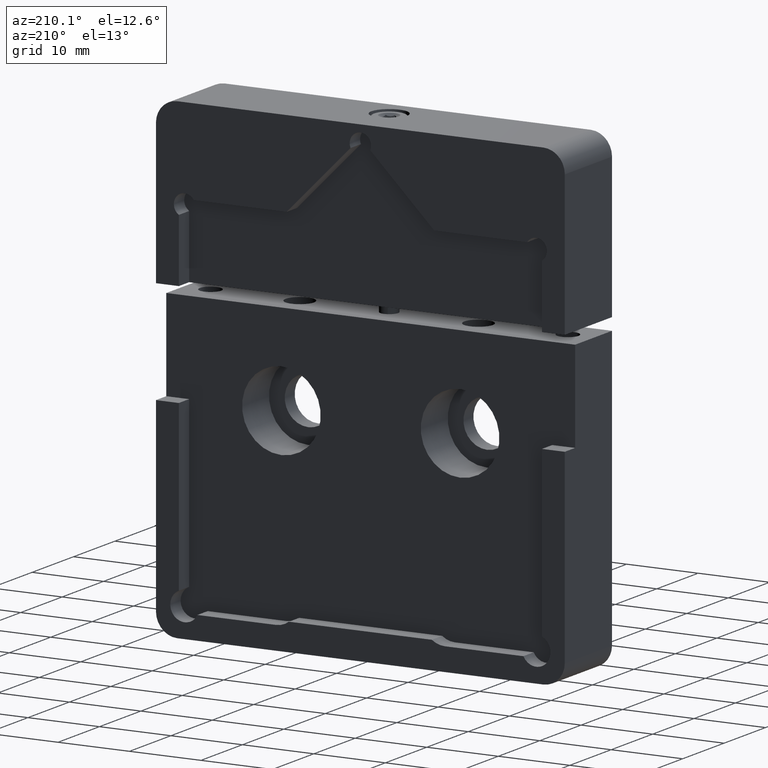
[diagram: clean part render]
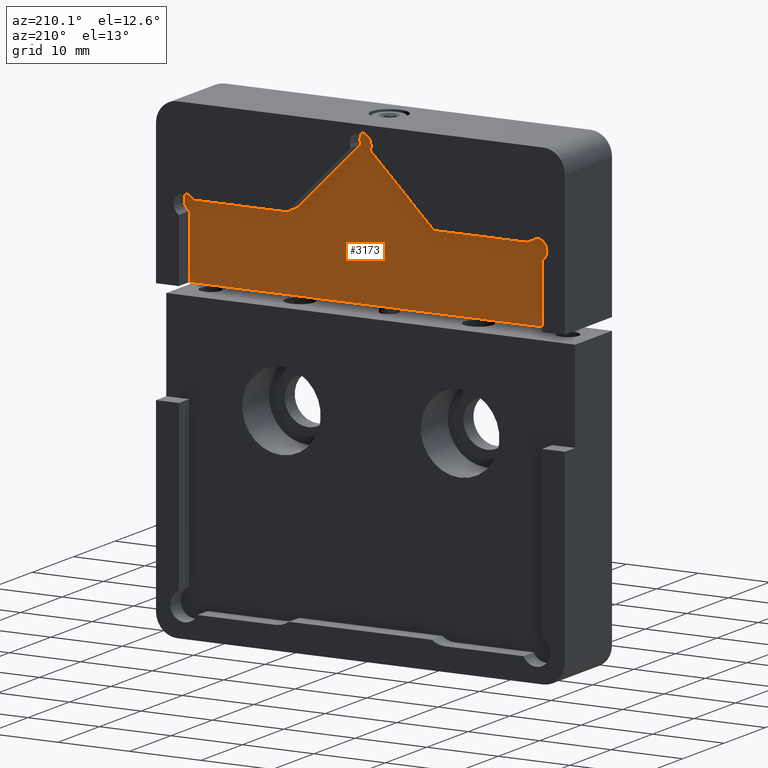
[diagram: same view with one face highlighted and labeled with its STEP entity id]
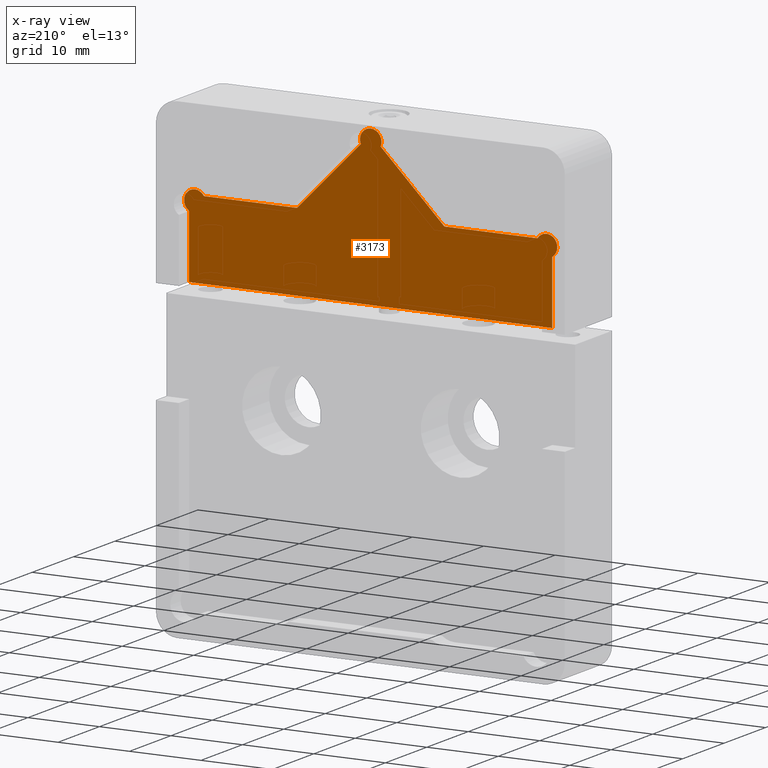
[diagram: x-ray of the same camera — body ghosted, the highlighted face saturated]
A machine part, auxiliary view. The second image highlights one B-rep face of the part: STEP entity #3173.
The next image is the same camera in x-ray: the body ghosted, the highlighted face saturated — about 0% of this face is hidden behind the body in this view.
In plain terms, the highlighted planar face has unit normal (-0, -1, 0).
Its self-contained STEP definition (entity closure, byte-faithful):
#17 = VECTOR ( 'NONE', #1145, 1000.000000000000000 ) ;
#169 = LINE ( 'NONE', #671, #2625 ) ;
#185 = DIRECTION ( 'NONE',  ( -1.000000000000000000, 0.000000000000000000, 0.000000000000000000 ) ) ;
#200 = ORIENTED_EDGE ( 'NONE', *, *, #2342, .T. ) ;
#223 = DIRECTION ( 'NONE',  ( 0.000000000000000000, 0.000000000000000000, -1.000000000000000000 ) ) ;
#271 = VECTOR ( 'NONE', #3112, 1000.000000000000000 ) ;
#337 = EDGE_CURVE ( 'NONE', #843, #2241, #2102, .T. ) ;
#387 = ORIENTED_EDGE ( 'NONE', *, *, #3261, .T. ) ;
#441 = AXIS2_PLACEMENT_3D ( 'NONE', #1025, #471, #1584 ) ;
#471 = DIRECTION ( 'NONE',  ( 0.000000000000000000, -1.000000000000000000, 0.000000000000000000 ) ) ;
#488 = LINE ( 'NONE', #836, #1431 ) ;
#636 = CARTESIAN_POINT ( 'NONE',  ( -1.382344135219425230, 8.900000000000000355, -8.367655864780582320 ) ) ;
#671 = CARTESIAN_POINT ( 'NONE',  ( 9.078905703242507170E-19, 8.899999999999998579, -9.750000000000007105 ) ) ;
#674 = ORIENTED_EDGE ( 'NONE', *, *, #3353, .T. ) ;
#675 = EDGE_CURVE ( 'NONE', #824, #2348, #1586, .T. ) ;
#690 = EDGE_CURVE ( 'NONE', #1110, #2789, #169, .T. ) ;
#746 = CARTESIAN_POINT ( 'NONE',  ( 25.39999999999999858, 8.900000000000000355, 2.618857754044939590 ) ) ;
#752 = LINE ( 'NONE', #3531, #781 ) ;
#760 = LINE ( 'NONE', #1628, #1129 ) ;
#774 = FACE_OUTER_BOUND ( 'NONE', #2798, .T. ) ;
#781 = VECTOR ( 'NONE', #2161, 999.9999999999998863 ) ;
#792 = ORIENTED_EDGE ( 'NONE', *, *, #690, .T. ) ;
#824 = VERTEX_POINT ( 'NONE', #2475 ) ;
#836 = CARTESIAN_POINT ( 'NONE',  ( -25.39999999999999503, 8.900000000000000355, 0.5499999999999983791 ) ) ;
#843 = VERTEX_POINT ( 'NONE', #1666 ) ;
#886 = EDGE_CURVE ( 'NONE', #2241, #2348, #1027, .T. ) ;
#908 = CARTESIAN_POINT ( 'NONE',  ( -25.39999999999999503, 8.900000000000000355, 0.5499999999999983791 ) ) ;
#956 = CARTESIAN_POINT ( 'NONE',  ( 10.30000000000000249, 8.899999999999998579, 0.5499999999999949374 ) ) ;
#962 = DIRECTION ( 'NONE',  ( -0.7071067811865474617, 0.000000000000000000, -0.7071067811865474617 ) ) ;
#1025 = CARTESIAN_POINT ( 'NONE',  ( 0.000000000000000000, 8.900000000000000355, 0.000000000000000000 ) ) ;
#1027 = LINE ( 'NONE', #3113, #17 ) ;
#1085 = CARTESIAN_POINT ( 'NONE',  ( 23.33114224595503572, 8.900000000000000355, 0.5499999999999989342 ) ) ;
#1110 = VERTEX_POINT ( 'NONE', #956 ) ;
#1129 = VECTOR ( 'NONE', #223, 1000.000000000000000 ) ;
#1144 = DIRECTION ( 'NONE',  ( -1.000000000000000000, -0.000000000000000000, -0.000000000000000000 ) ) ;
#1145 = DIRECTION ( 'NONE',  ( -0.000000000000000000, -0.000000000000000000, 1.000000000000000000 ) ) ;
#1186 = DIRECTION ( 'NONE',  ( -1.776356839400250859E-15, 0.000000000000000000, -1.000000000000000000 ) ) ;
#1431 = VECTOR ( 'NONE', #1144, 1000.000000000000000 ) ;
#1465 = VECTOR ( 'NONE', #185, 1000.000000000000000 ) ;
#1549 = CIRCLE ( 'NONE', #1608, 1.500000000000000666 ) ;
#1567 = CARTESIAN_POINT ( 'NONE',  ( -28.59999999999999076, 8.900000000000000355, 11.44999999999999751 ) ) ;
#1584 = DIRECTION ( 'NONE',  ( 0.000000000000000000, -0.000000000000000000, -1.000000000000000000 ) ) ;
#1586 = LINE ( 'NONE', #1567, #1465 ) ;
#1604 = CIRCLE ( 'NONE', #2183, 1.499999999999999556 ) ;
#1608 = AXIS2_PLACEMENT_3D ( 'NONE', #1735, #3109, #2822 ) ;
#1628 = CARTESIAN_POINT ( 'NONE',  ( 25.39999999999999858, 8.900000000000000355, 22.34999999999999787 ) ) ;
#1657 = ORIENTED_EDGE ( 'NONE', *, *, #3374, .T. ) ;
#1666 = CARTESIAN_POINT ( 'NONE',  ( -23.33114224595503927, 8.900000000000000355, 0.5499999999999983791 ) ) ;
#1681 = CARTESIAN_POINT ( 'NONE',  ( -25.39999999999999503, 8.900000000000000355, 2.618857754044947583 ) ) ;
#1735 = CARTESIAN_POINT ( 'NONE',  ( 24.59999999999999787, 8.900000000000000355, 1.349999999999987876 ) ) ;
#1745 = VERTEX_POINT ( 'NONE', #746 ) ;
#1886 = DIRECTION ( 'NONE',  ( -2.312964634635741872E-15, 0.000000000000000000, -1.000000000000000000 ) ) ;
#1950 = VERTEX_POINT ( 'NONE', #636 ) ;
#1990 = AXIS2_PLACEMENT_3D ( 'NONE', #2460, #3325, #1886 ) ;
#2102 = CIRCLE ( 'NONE', #1990, 1.500000000000000666 ) ;
#2161 = DIRECTION ( 'NONE',  ( -0.7071067811865472397, 0.000000000000000000, 0.7071067811865479058 ) ) ;
#2183 = AXIS2_PLACEMENT_3D ( 'NONE', #2582, #2269, #1186 ) ;
#2241 = VERTEX_POINT ( 'NONE', #1681 ) ;
#2269 = DIRECTION ( 'NONE',  ( -0.000000000000000000, 1.000000000000000000, -0.000000000000000000 ) ) ;
#2342 = EDGE_CURVE ( 'NONE', #1745, #3122, #1549, .T. ) ;
#2348 = VERTEX_POINT ( 'NONE', #3332 ) ;
#2460 = CARTESIAN_POINT ( 'NONE',  ( -24.59999999999999787, 8.900000000000000355, 1.349999999999994094 ) ) ;
#2475 = CARTESIAN_POINT ( 'NONE',  ( 25.39999999999999858, 8.900000000000000355, 11.44999999999999751 ) ) ;
#2582 = CARTESIAN_POINT ( 'NONE',  ( 9.797174393178826150E-17, 8.900000000000000355, -8.950000000000006395 ) ) ;
#2625 = VECTOR ( 'NONE', #962, 1000.000000000000114 ) ;
#2736 = ORIENTED_EDGE ( 'NONE', *, *, #675, .F. ) ;
#2789 = VERTEX_POINT ( 'NONE', #3535 ) ;
#2798 = EDGE_LOOP ( 'NONE', ( #200, #387, #792, #674, #2969, #1657, #3081, #3253, #2736, #3085 ) ) ;
#2822 = DIRECTION ( 'NONE',  ( 0.000000000000000000, 0.000000000000000000, -1.000000000000000000 ) ) ;
#2825 = EDGE_CURVE ( 'NONE', #824, #1745, #760, .T. ) ;
#2945 = PLANE ( 'NONE',  #441 ) ;
#2969 = ORIENTED_EDGE ( 'NONE', *, *, #3106, .T. ) ;
#3022 = CARTESIAN_POINT ( 'NONE',  ( -10.29999999999999893, 8.899999999999998579, 0.5499999999999980460 ) ) ;
#3081 = ORIENTED_EDGE ( 'NONE', *, *, #337, .T. ) ;
#3085 = ORIENTED_EDGE ( 'NONE', *, *, #2825, .T. ) ;
#3106 = EDGE_CURVE ( 'NONE', #1950, #3138, #752, .T. ) ;
#3109 = DIRECTION ( 'NONE',  ( -0.000000000000000000, 1.000000000000000000, -0.000000000000000000 ) ) ;
#3112 = DIRECTION ( 'NONE',  ( -1.000000000000000000, -0.000000000000000000, -0.000000000000000000 ) ) ;
#3113 = CARTESIAN_POINT ( 'NONE',  ( -25.39999999999999503, 8.900000000000000355, 22.34999999999999787 ) ) ;
#3122 = VERTEX_POINT ( 'NONE', #1085 ) ;
#3138 = VERTEX_POINT ( 'NONE', #3022 ) ;
#3173 = ADVANCED_FACE ( 'NONE', ( #774 ), #2945, .F. ) ;
#3253 = ORIENTED_EDGE ( 'NONE', *, *, #886, .T. ) ;
#3261 = EDGE_CURVE ( 'NONE', #3122, #1110, #488, .T. ) ;
#3325 = DIRECTION ( 'NONE',  ( -0.000000000000000000, 1.000000000000000000, -0.000000000000000000 ) ) ;
#3332 = CARTESIAN_POINT ( 'NONE',  ( -25.39999999999999503, 8.900000000000000355, 11.44999999999999751 ) ) ;
#3353 = EDGE_CURVE ( 'NONE', #2789, #1950, #1604, .T. ) ;
#3372 = LINE ( 'NONE', #908, #271 ) ;
#3374 = EDGE_CURVE ( 'NONE', #3138, #843, #3372, .T. ) ;
#3531 = CARTESIAN_POINT ( 'NONE',  ( -10.29999999999999893, 8.899999999999998579, 0.5499999999999983791 ) ) ;
#3535 = CARTESIAN_POINT ( 'NONE',  ( 1.382344135219424563, 8.900000000000000355, -8.367655864780580544 ) ) ;